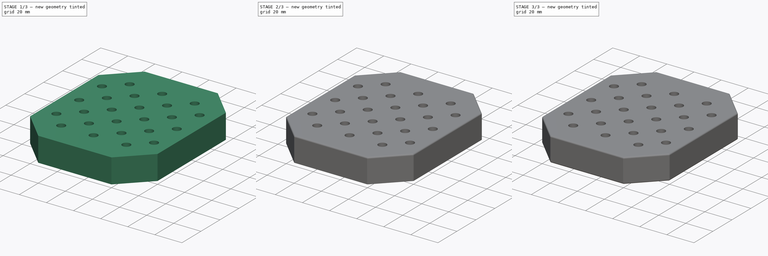
[diagram: build sequence overview — one tinted view per stage of 3, left to right]
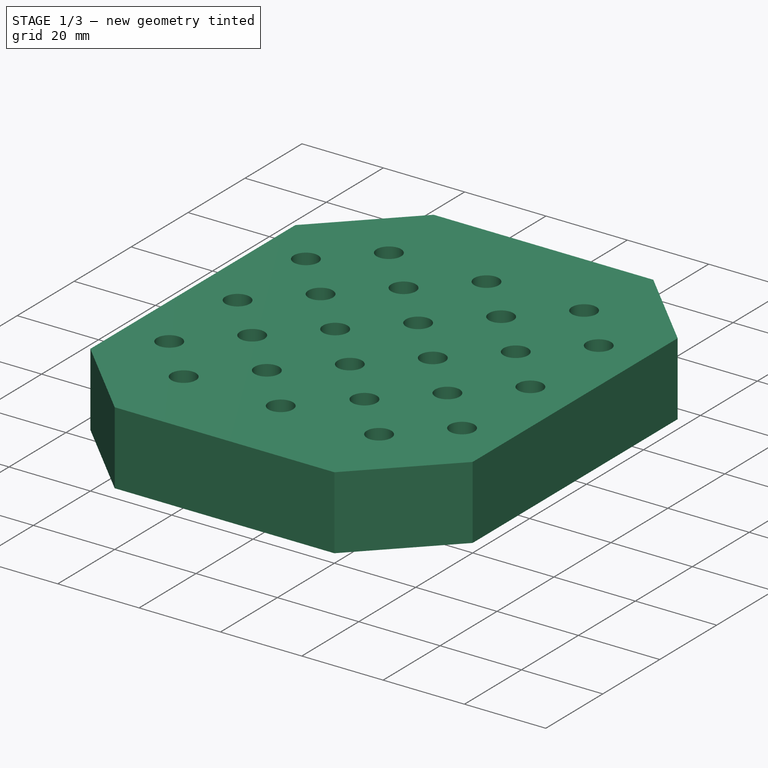
[diagram: stage 1 of 3 — iso view after this stage's code; geometry added in this stage tinted green]
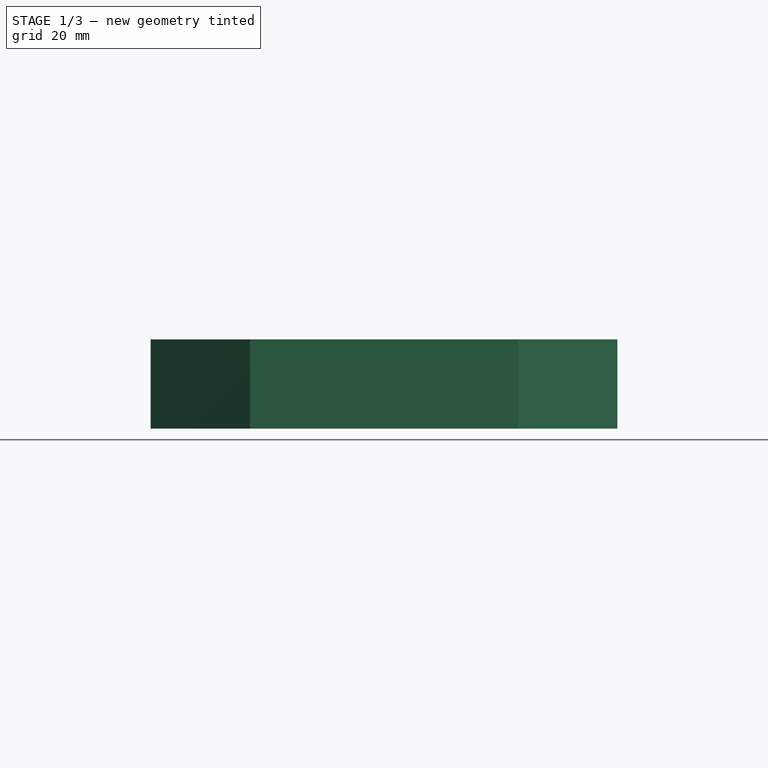
[diagram: stage 1 of 3 — front view after this stage's code; geometry added in this stage tinted green]
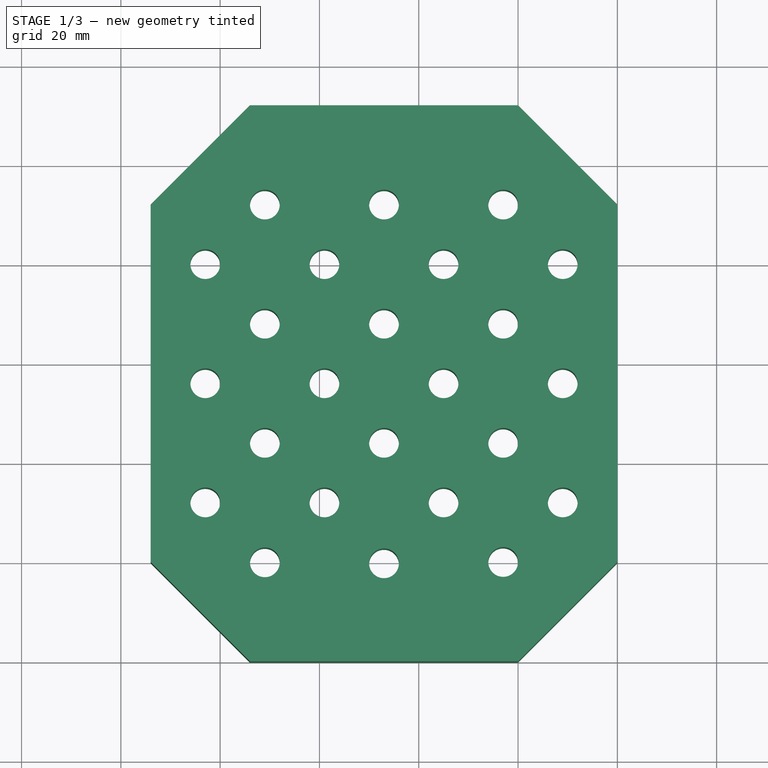
[diagram: stage 1 of 3 — top view after this stage's code; geometry added in this stage tinted green]
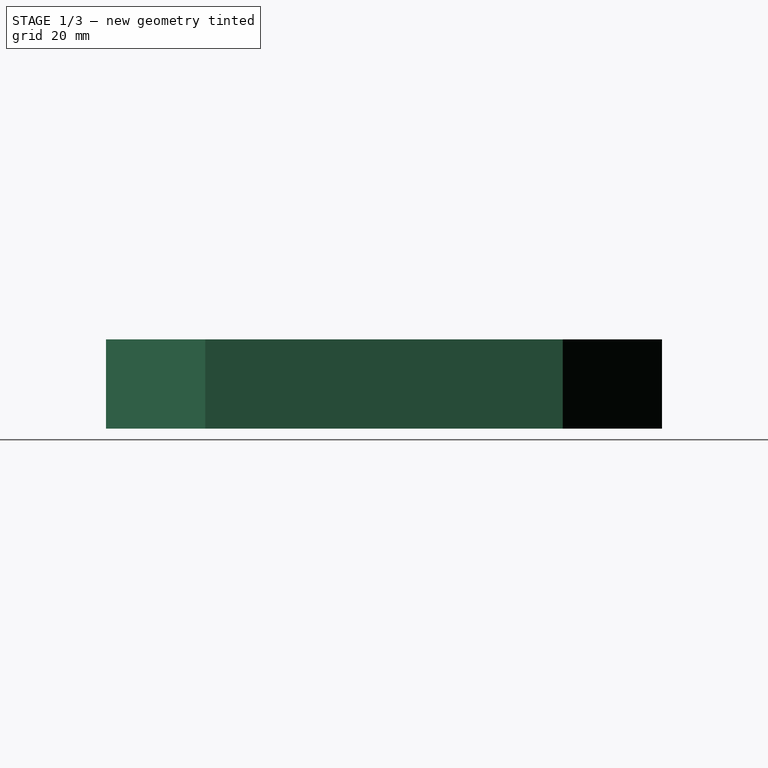
[diagram: stage 1 of 3 — right view after this stage's code; geometry added in this stage tinted green]
FCSTD DOCUMENT  (FreeCAD 0.18R4 (GitTag))
Label: router_plate
License: All rights reserved
LicenseURL: http://en.wikipedia.org/wiki/All_rights_reserved
objects: PartDesign::Fillet×4, Sketcher::SketchObject×2, PartDesign::Pad×1, PartDesign::Pocket×1, PartDesign::Body×1
note: 11 computed .brp shape members not serialized (recipe doc carries the construction recipe); baked Part::Feature solids carry a one-line shape summary decoded from their .brp

FEATURE [Sketcher::SketchObject] Sketch
  MapMode = 5
  Support = -> [XY_Plane]
  sketch-geometry (28):
    g0: LineSegment StartX=0 StartY=0 StartZ=0 EndX=-94 EndY=0 EndZ=0
    g1: LineSegment StartX=-94 StartY=0 StartZ=0 EndX=-94 EndY=112 EndZ=0
    g2: LineSegment StartX=-94 StartY=112 StartZ=0 EndX=0 EndY=112 EndZ=0
    g3: LineSegment StartX=0 StartY=112 StartZ=0 EndX=0 EndY=0 EndZ=0
    g4: Circle CenterX=-47 CenterY=19.7281 CenterZ=0 NormalX=0 NormalY=0 NormalZ=1 AngleXU=0 Radius=3
    g5: Circle CenterX=-23 CenterY=68 CenterZ=0 NormalX=0 NormalY=0 NormalZ=1 AngleXU=0 Radius=3
    g6: Circle CenterX=-23 CenterY=44 CenterZ=0 NormalX=0 NormalY=0 NormalZ=1 AngleXU=0 Radius=3
    g7: Circle CenterX=-23 CenterY=20 CenterZ=0 NormalX=0 NormalY=0 NormalZ=1 AngleXU=0 Radius=3
    g8: Circle CenterX=-23 CenterY=92 CenterZ=0 NormalX=0 NormalY=0 NormalZ=1 AngleXU=0 Radius=3
    g9: Circle CenterX=-47 CenterY=44 CenterZ=0 NormalX=0 NormalY=0 NormalZ=1 AngleXU=0 Radius=3
    g10: Circle CenterX=-47 CenterY=68 CenterZ=0 NormalX=0 NormalY=0 NormalZ=1 AngleXU=0 Radius=3
    g11: Circle CenterX=-47 CenterY=92 CenterZ=0 NormalX=0 NormalY=0 NormalZ=1 AngleXU=0 Radius=3
    g12: Circle CenterX=-71 CenterY=92 CenterZ=0 NormalX=0 NormalY=0 NormalZ=1 AngleXU=0 Radius=3
    g13: Circle CenterX=-71 CenterY=68 CenterZ=0 NormalX=0 NormalY=0 NormalZ=1 AngleXU=0 Radius=3
    g14: Circle CenterX=-59 CenterY=32 CenterZ=0 NormalX=0 NormalY=0 NormalZ=1 AngleXU=0 Radius=3
    g15: Circle CenterX=-71 CenterY=19.9297 CenterZ=0 NormalX=0 NormalY=0 NormalZ=1 AngleXU=0 Radius=3
    g16: Circle CenterX=-71 CenterY=44 CenterZ=0 NormalX=0 NormalY=0 NormalZ=1 AngleXU=0 Radius=3
    g17: Circle CenterX=-59 CenterY=56 CenterZ=0 NormalX=0 NormalY=0 NormalZ=1 AngleXU=0 Radius=3
    g18: Circle CenterX=-35 CenterY=56 CenterZ=0 NormalX=0 NormalY=0 NormalZ=1 AngleXU=0 Radius=3
    g19: Circle CenterX=-35 CenterY=32 CenterZ=0 NormalX=0 NormalY=0 NormalZ=1 AngleXU=0 Radius=3
    g20: Circle CenterX=-35 CenterY=80 CenterZ=0 NormalX=0 NormalY=0 NormalZ=1 AngleXU=0 Radius=3
    g21: Circle CenterX=-59 CenterY=80 CenterZ=0 NormalX=0 NormalY=0 NormalZ=1 AngleXU=0 Radius=3
    g22: Circle CenterX=-83 CenterY=32 CenterZ=0 NormalX=0 NormalY=0 NormalZ=1 AngleXU=0 Radius=3
    g23: Circle CenterX=-83 CenterY=56 CenterZ=0 NormalX=0 NormalY=0 NormalZ=1 AngleXU=0 Radius=3
    g24: Circle CenterX=-83 CenterY=80 CenterZ=0 NormalX=0 NormalY=0 NormalZ=1 AngleXU=0 Radius=3
    g25: Circle CenterX=-11 CenterY=80 CenterZ=0 NormalX=0 NormalY=0 NormalZ=1 AngleXU=0 Radius=3
    g26: Circle CenterX=-11 CenterY=56 CenterZ=0 NormalX=0 NormalY=0 NormalZ=1 AngleXU=0 Radius=3
    g27: Circle CenterX=-11 CenterY=32 CenterZ=0 NormalX=0 NormalY=0 NormalZ=1 AngleXU=0 Radius=3
  constraints (81):
    c: Coincident(g0,g1)
    c: Coincident(g1,g2)
    c: Coincident(g2,g3)
    c: Coincident(g3,g0)
    c: Horizontal(g0)
    c: Horizontal(g2)
    c: Vertical(g1)
    c: Vertical(g3)
    c: Coincident(g0,g-1)
    c: DistanceY(g3,g3) = 112
    c: DistanceX(g2,g2) = 94
    c: Diameter(g15) = 6
    c: Diameter(g4) = 6
    c: Diameter(g7) = 6
    c: Diameter(g19) = 6
    c: Diameter(g14) = 6
    c: Diameter(g9) = 6
    c: Diameter(g6) = 6
    c: Diameter(g18) = 6
    c: Diameter(g5) = 6
    c: Diameter(g8) = 6
    c: Diameter(g11) = 6
    c: Diameter(g12) = 6
    c: Diameter(g13) = 6
    c: Diameter(g21) = 6
    c: Diameter(g10) = 6
    c: Diameter(g16) = 6
    c: Diameter(g17) = 6
    c: Diameter(g20) = 6
    c: Diameter(g24) = 6
    c: Diameter(g23) = 6
    c: Diameter(g22) = 6
    c: Diameter(g27) = 6
    c: Diameter(g26) = 6
    c: Diameter(g25) = 6
    c: DistanceY(g7,g27) = 12
    c: DistanceY(g0,g7) = 20
    c: DistanceY(g27,g6) = 12
    c: DistanceY(g6,g26) = 12
    c: DistanceY(g26,g5) = 12
    c: DistanceY(g5,g25) = 12
    c: DistanceY(g25,g8) = 12
    c: DistanceX(g7,g27) = 12
    c: DistanceX(g27,g0) = 11
    c: DistanceX(g19,g7) = 12
    c: DistanceX(g4,g19) = 12
    c: DistanceX(g14,g4) = 12
    c: DistanceX(g15,g14) = 12
    c: DistanceX(g22,g15) = 12
    c: DistanceY(g19,g27) = 0
    c: DistanceY(g19,g14) = 0
    c: DistanceY(g22,g14) = 0
    c: DistanceY(g9,g16) = 0
    c: DistanceY(g6,g9) = 0
    c: DistanceY(g18,g26) = 0
    c: DistanceY(g17,g18) = 0
    c: DistanceY(g23,g17) = 0
    c: DistanceY(g10,g5) = 0
    c: DistanceY(g13,g10) = 0
    c: DistanceY(g20,g25) = 0
    c: DistanceY(g20,g21) = 0
    c: DistanceY(g24,g21) = 0
    c: DistanceY(g11,g12) = 0
    c: DistanceY(g8,g11) = 0
    c: DistanceX(g26,g27) = 0
    c: DistanceX(g25,g26) = 0
    c: DistanceX(g6,g7) = 0
    c: DistanceX(g5,g6) = 0
    c: DistanceX(g5,g8) = 0
    c: DistanceX(g19,g18) = 0
    c: DistanceX(g20,g18) = 0
    c: DistanceX(g9,g4) = 0
    c: DistanceX(g10,g9) = 0
    c: DistanceX(g11,g10) = 0
    c: DistanceX(g17,g14) = 0
    c: DistanceX(g21,g17) = 0
    c: DistanceX(g16,g15) = 0
    c: DistanceX(g13,g16) = 0
    c: DistanceX(g12,g13) = 0
    c: DistanceX(g23,g22) = 0
    c: DistanceX(g24,g23) = 0
FEATURE [PartDesign::Pad] Pad
  Length = 18
  Length2 = 100
  Profile = -> Sketch
  Type = 0
FEATURE [Sketcher::SketchObject] Sketch001
  MapMode = 5
  Placement = pos=(0,0,18) rot=(0,0,1;0rad)
  Support = -> [Pad]
  sketch-geometry (12):
    g0: LineSegment StartX=0 StartY=0 StartZ=0 EndX=0 EndY=20 EndZ=0
    g1: LineSegment StartX=0 StartY=20 StartZ=0 EndX=-20 EndY=0 EndZ=0
    g2: LineSegment StartX=-20 StartY=0 StartZ=0 EndX=0 EndY=0 EndZ=0
    g3: LineSegment StartX=0 StartY=112 StartZ=0 EndX=0 EndY=92 EndZ=0
    g4: LineSegment StartX=0 StartY=92 StartZ=0 EndX=-20 EndY=112 EndZ=0
    g5: LineSegment StartX=-20 StartY=112 StartZ=0 EndX=0 EndY=112 EndZ=0
    g6: LineSegment StartX=-74 StartY=112 StartZ=0 EndX=-94 EndY=112 EndZ=0
    g7: LineSegment StartX=-94 StartY=112 StartZ=0 EndX=-94 EndY=92 EndZ=0
    g8: LineSegment StartX=-94 StartY=92 StartZ=0 EndX=-74 EndY=112 EndZ=0
    g9: LineSegment StartX=-94 StartY=20 StartZ=0 EndX=-94 EndY=0 EndZ=0
    g10: LineSegment StartX=-94 StartY=0 StartZ=0 EndX=-74 EndY=0 EndZ=0
    g11: LineSegment StartX=-74 StartY=0 StartZ=0 EndX=-94 EndY=20 EndZ=0
  constraints (35):
    c: Coincident(g2,g0)
    c: Coincident(g2,g1)
    c: Coincident(g1,g0)
    c: Coincident(g0,g-1)
    c: Coincident(g3,g5)
    c: Coincident(g5,g4)
    c: Coincident(g4,g3)
    c: Coincident(g7,g8)
    c: Coincident(g6,g7)
    c: Coincident(g6,g8)
    c: Coincident(g9,g10)
    c: Coincident(g10,g11)
    c: Coincident(g11,g9)
    c: Vertical(g0)
    c: Vertical(g3)
    c: Vertical(g7)
    c: Vertical(g9)
    c: Horizontal(g10)
    c: Horizontal(g2)
    c: Horizontal(g5)
    c: Horizontal(g6)
    c: DistanceX(g2,g2) = 20
    c: DistanceY(g0,g0) = 20
    c: PointOnObject(g3,g-2)
    c: DistanceY(g3,g3) = 20
    c: DistanceX(g5,g5) = 20
    c: DistanceX(g6,g6) = 20
    c: DistanceY(g7,g7) = 20
    c: DistanceY(g9,g9) = 20
    c: DistanceX(g10,g10) = 20
    c: PointOnObject(g9,g-1)
    c: DistanceX(g9,g0) = 94
    c: DistanceY(g0,g3) = 112
    c: DistanceY(g6,g3) = 0
    c: DistanceX(g9,g6) = 0
FEATURE [PartDesign::Pocket] Pocket
  BaseFeature = -> Pad
  Length = 5
  Length2 = 100
  Profile = -> Sketch001
  Type = 1
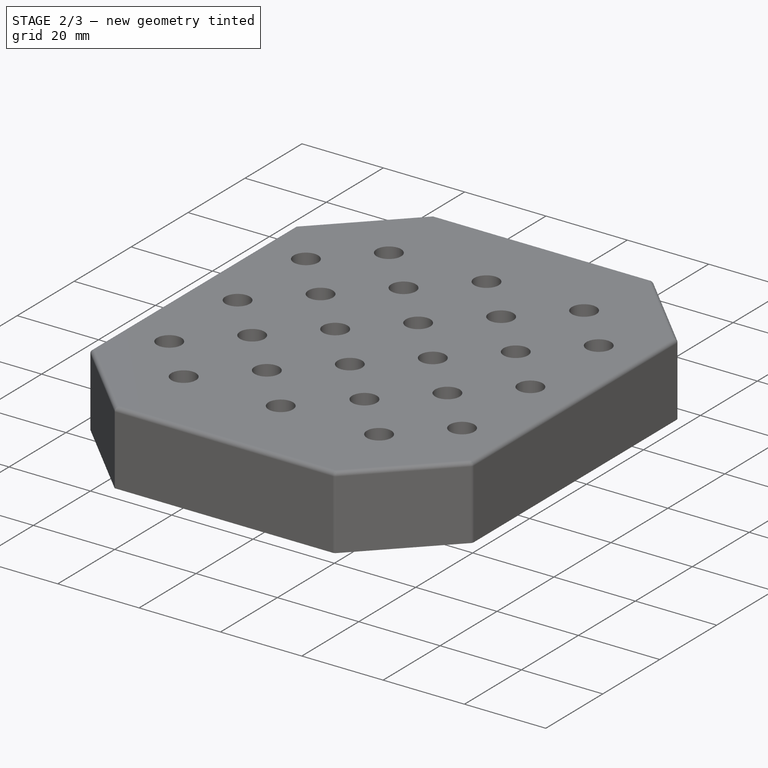
[diagram: stage 2 of 3 — iso view after this stage's code; geometry added in this stage tinted green]
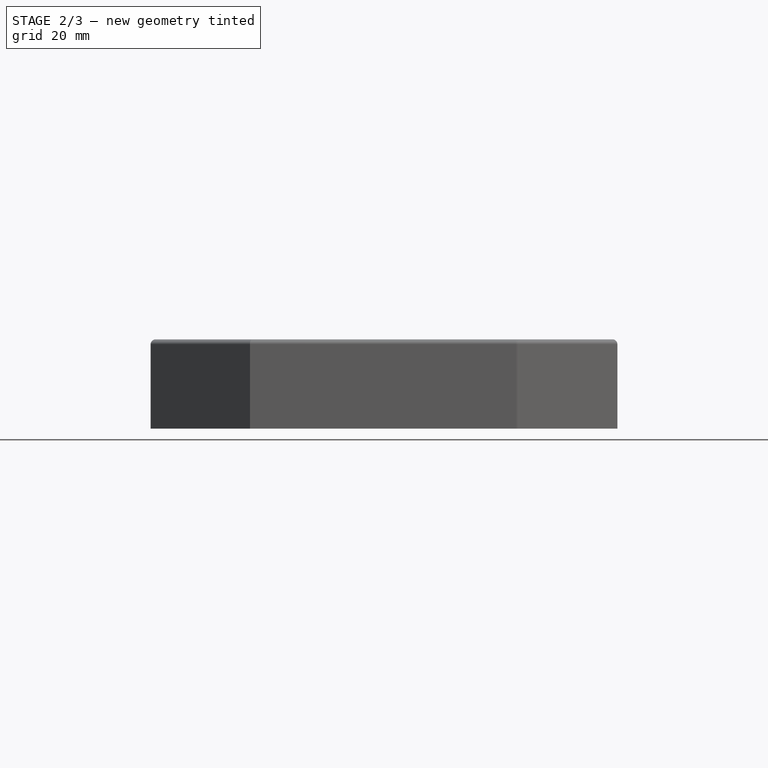
[diagram: stage 2 of 3 — front view after this stage's code; geometry added in this stage tinted green]
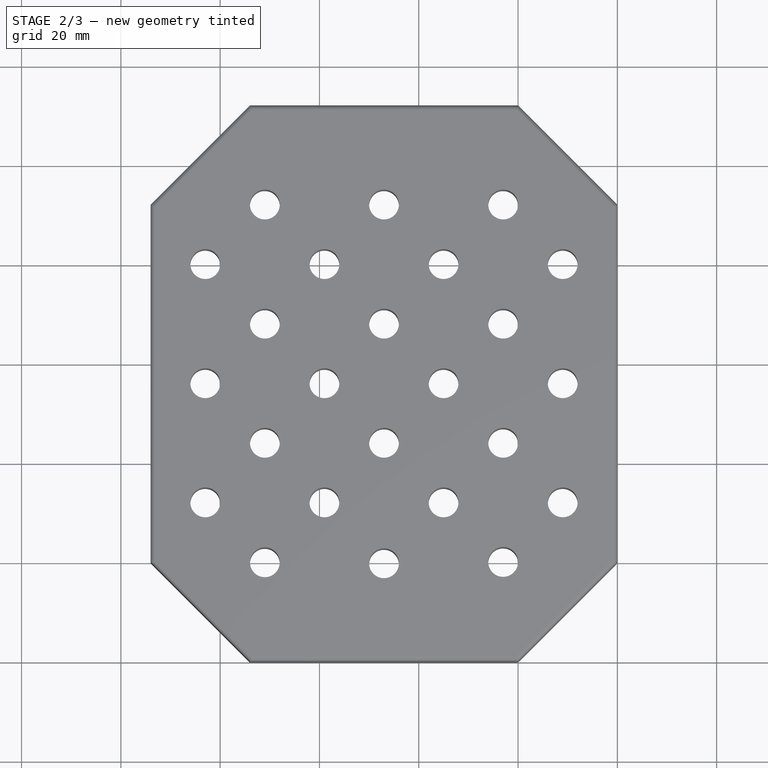
[diagram: stage 2 of 3 — top view after this stage's code; geometry added in this stage tinted green]
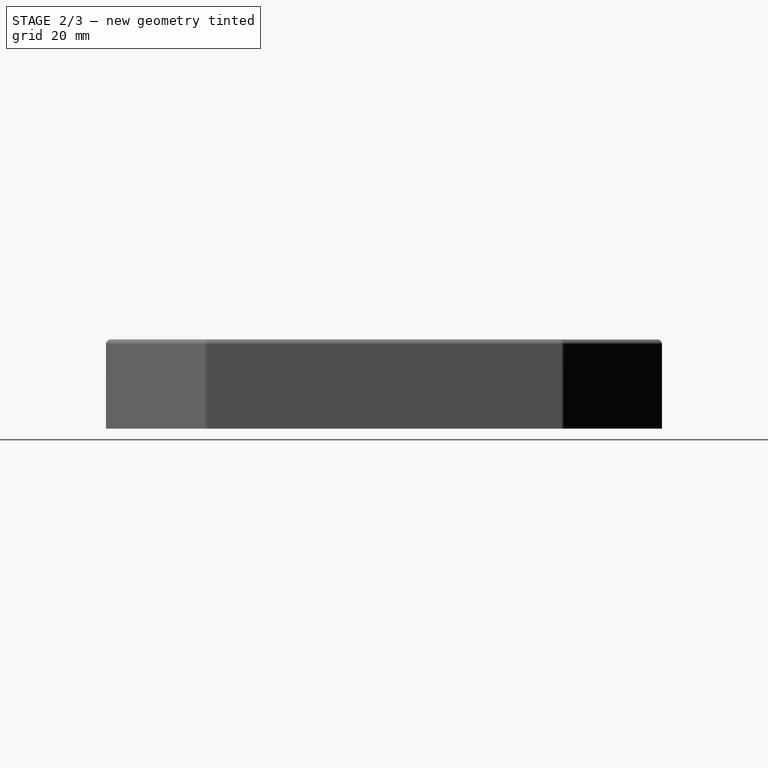
[diagram: stage 2 of 3 — right view after this stage's code; geometry added in this stage tinted green]
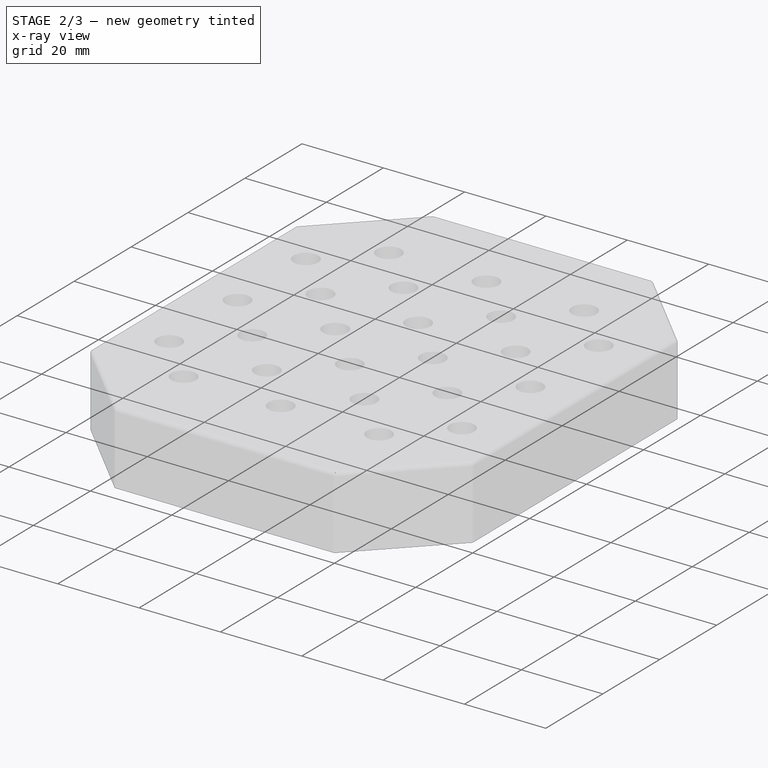
[diagram: stage 2 of 3 — x-ray composite at the iso view; earlier geometry ghosted, this stage's added geometry solid]
FEATURE [PartDesign::Fillet] Fillet
  Base = -> Pocket [Edge42,Edge41,Edge40,Edge39,Edge38,Edge3,Edge36,Edge43]
  BaseFeature = -> Pocket
  Radius = 1
FEATURE [PartDesign::Fillet] Fillet001
  Base = -> Fillet [Edge42,Edge4,Edge79,Edge80]
  BaseFeature = -> Fillet
  Radius = 1
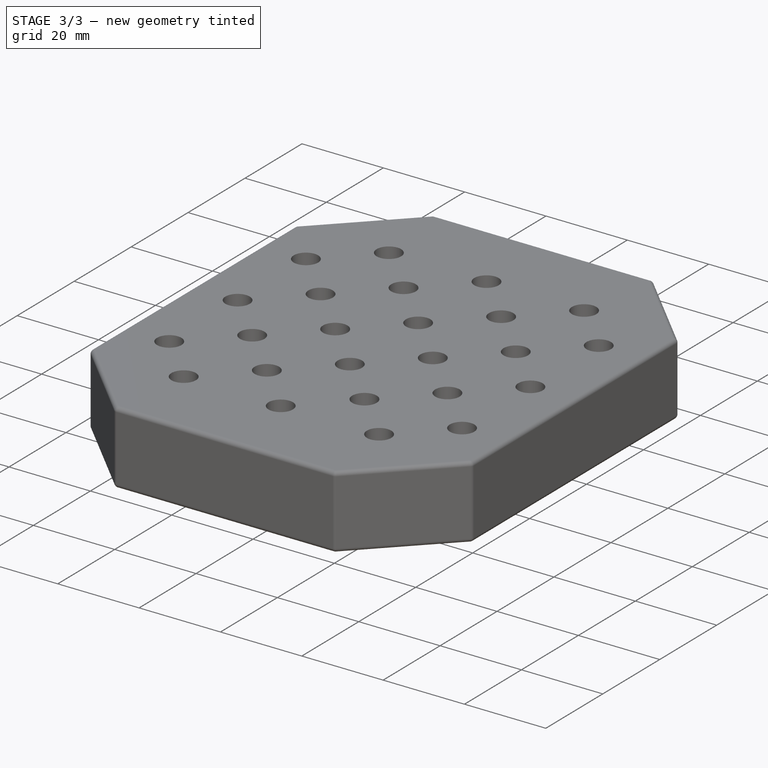
[diagram: stage 3 of 3 — iso view after this stage's code; geometry added in this stage tinted green]
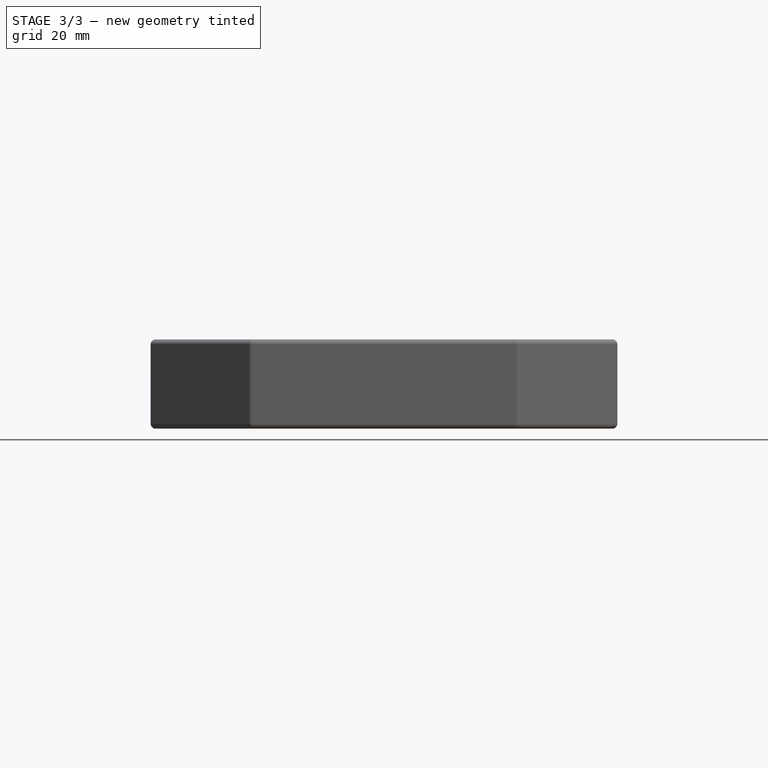
[diagram: stage 3 of 3 — front view after this stage's code; geometry added in this stage tinted green]
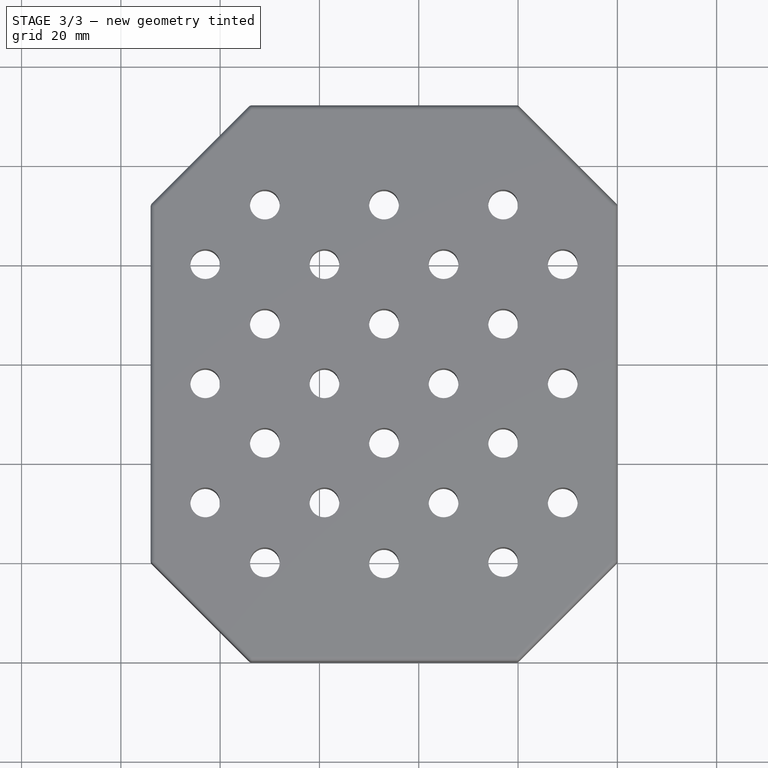
[diagram: stage 3 of 3 — top view after this stage's code; geometry added in this stage tinted green]
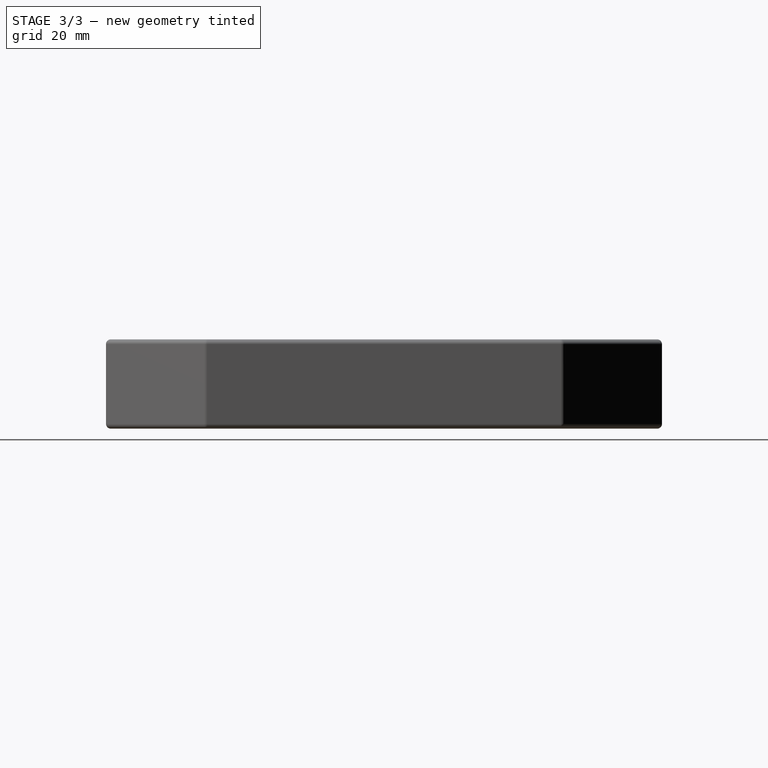
[diagram: stage 3 of 3 — right view after this stage's code; geometry added in this stage tinted green]
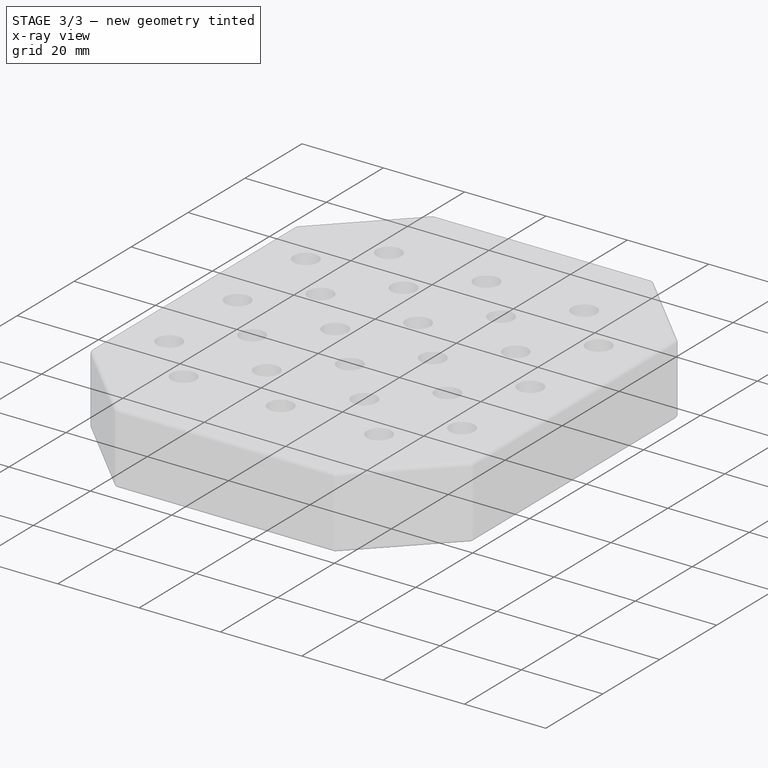
[diagram: stage 3 of 3 — x-ray composite at the iso view; earlier geometry ghosted, this stage's added geometry solid]
FEATURE [PartDesign::Fillet] Fillet002
  Base = -> Fillet001 [Edge93,Edge83,Edge11,Edge3]
  BaseFeature = -> Fillet001
  Radius = 1
FEATURE [PartDesign::Fillet] Fillet003
  Base = -> Fillet002 [Edge26,Edge22,Edge18,Edge14,Edge4,Edge15,Edge19,Edge23]
  BaseFeature = -> Fillet002
  Radius = 1
FEATURE [PartDesign::Body] Body
  Group = -> [Sketch,Pad,Sketch001,Pocket,Fillet,Fillet001,Fillet002,Fillet003]
  Origin = -> Origin
  Tip = -> Fillet003
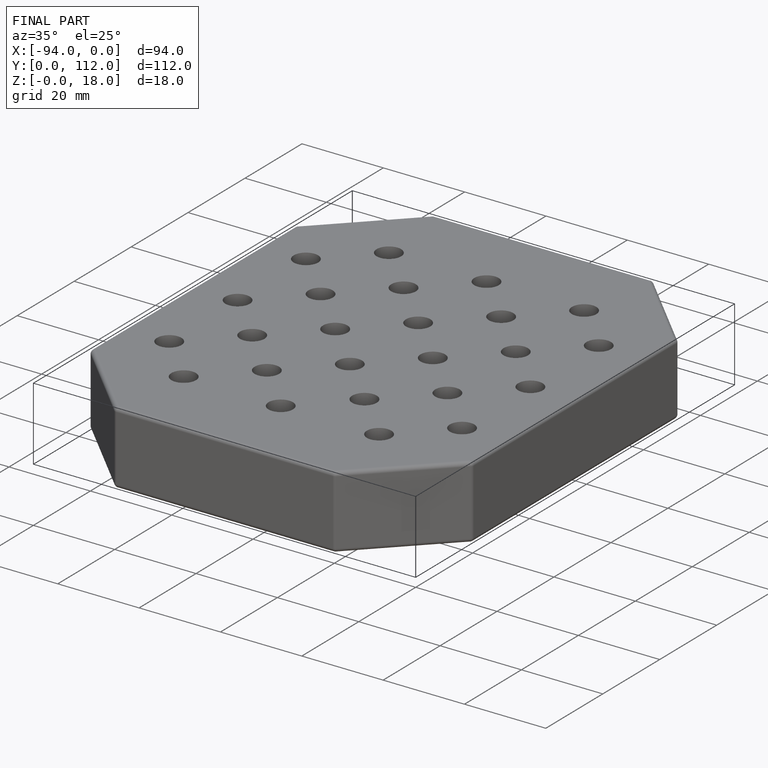
[diagram: finished part — iso view with bounding-box wireframe]
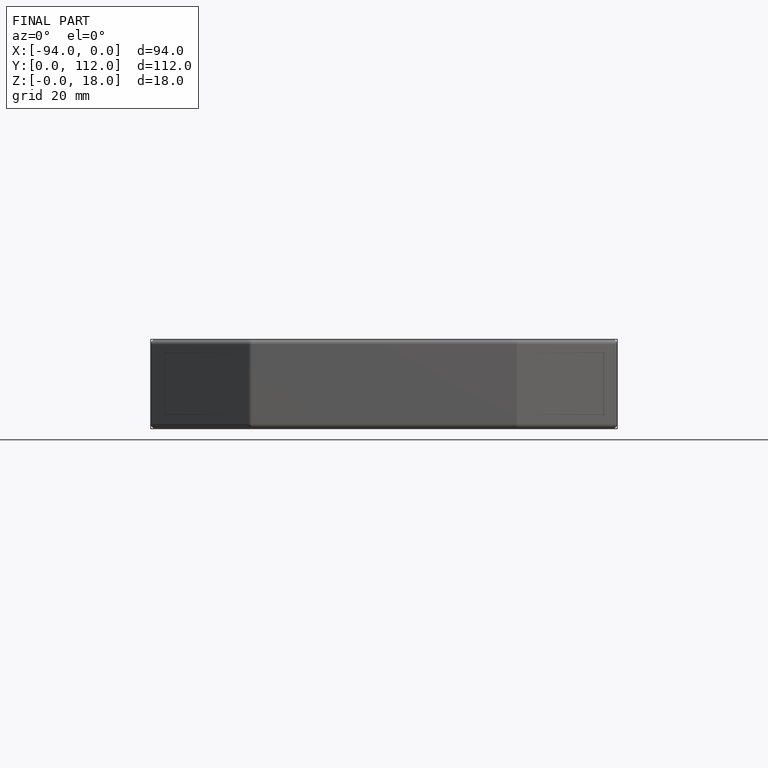
[diagram: finished part — front view with bounding-box wireframe]
